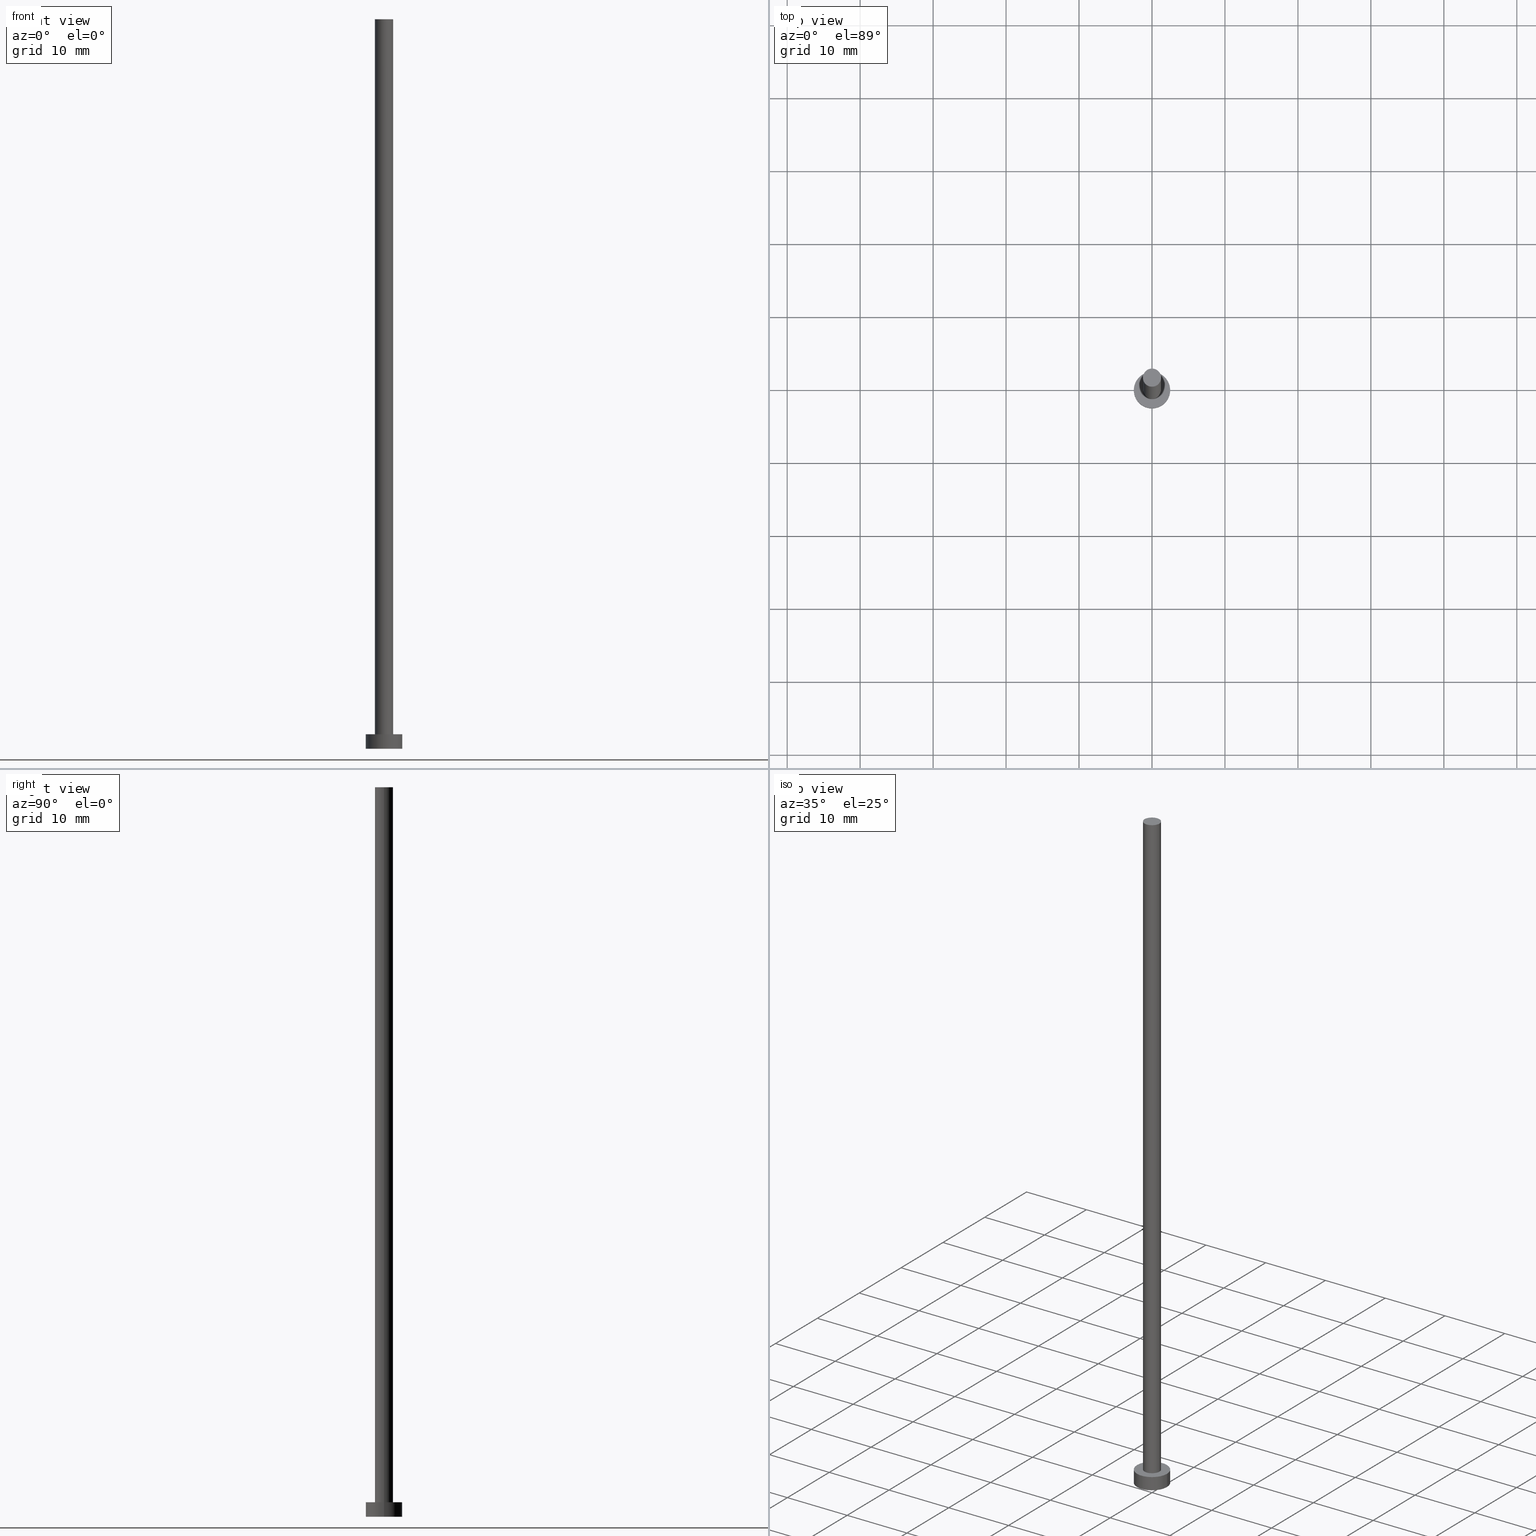
[diagram: canonical four-view strip — front | top / right | iso, engineering-drawing reading convention]
A machine part, canonical four-view strip (front | top / right | iso — engineering-drawing reading convention). The complete STEP part file that produces these views, byte-faithful:
ISO-10303-21;
HEADER;
FILE_DESCRIPTION (( 'STEP AP203' ),
    '1' );
FILE_NAME ('3bc7.STEP',
    '2023-02-13T16:41:01',
    ( '' ),
    ( '' ),
    'SwSTEP 2.0',
    'SolidWorks 2019',
    '' );
FILE_SCHEMA (( 'CONFIG_CONTROL_DESIGN' ));
ENDSEC;

DATA;
#1 = ORGANIZATION ( 'NEUR�EN�', 'NEUR�EN�', '' ) ;
#2 = DATE_AND_TIME ( #34, #132 ) ;
#3 = CARTESIAN_POINT ( 'NONE',  ( 0.000000000000000000, 0.000000000000000000, 100.0000000000000000 ) ) ;
#4 = PERSON_AND_ORGANIZATION ( #53, #1 ) ;
#5 = CARTESIAN_POINT ( 'NONE',  ( 0.000000000000000000, 0.000000000000000000, 100.0000000000000000 ) ) ;
#6 = AXIS2_PLACEMENT_3D ( 'NONE', #5, #10, #137 ) ;
#7 = ADVANCED_FACE ( 'NONE', ( #93 ), #202, .T. ) ;
#8 = ORIENTED_EDGE ( 'NONE', *, *, #186, .T. ) ;
#9 = PERSON_AND_ORGANIZATION ( #53, #1 ) ;
#10 = DIRECTION ( 'NONE',  ( 0.000000000000000000, 0.000000000000000000, 1.000000000000000000 ) ) ;
#11 = EDGE_LOOP ( 'NONE', ( #91, #114, #204, #171 ) ) ;
#12 = CLOSED_SHELL ( 'NONE', ( #88, #27, #7, #126, #124, #136, #212 ) ) ;
#13 = ORIENTED_EDGE ( 'NONE', *, *, #186, .F. ) ;
#14 = EDGE_CURVE ( 'NONE', #238, #81, #115, .T. ) ;
#15 = DIRECTION ( 'NONE',  ( 0.000000000000000000, 0.000000000000000000, 1.000000000000000000 ) ) ;
#16 = EDGE_LOOP ( 'NONE', ( #153, #89 ) ) ;
#17 = CARTESIAN_POINT ( 'NONE',  ( 0.000000000000000000, 0.000000000000000000, 0.000000000000000000 ) ) ;
#18 = CIRCLE ( 'NONE', #85, 1.250000000000000000 ) ;
#19 = FACE_OUTER_BOUND ( 'NONE', #200, .T. ) ;
#20 = PRODUCT_DEFINITION_SHAPE ( 'NONE', 'NONE',  #164 ) ;
#21 = FACE_BOUND ( 'NONE', #133, .T. ) ;
#22 = VERTEX_POINT ( 'NONE', #223 ) ;
#23 = EDGE_CURVE ( 'NONE', #22, #92, #215, .T. ) ;
#24 = LINE ( 'NONE', #90, #118 ) ;
#25 = EDGE_LOOP ( 'NONE', ( #64, #162, #8, #155 ) ) ;
#26 = COORDINATED_UNIVERSAL_TIME_OFFSET ( 1, 0, .AHEAD. ) ;
#27 = ADVANCED_FACE ( 'NONE', ( #45 ), #208, .T. ) ;
#28 = COORDINATED_UNIVERSAL_TIME_OFFSET ( 1, 0, .AHEAD. ) ;
#29 = LINE ( 'NONE', #220, #206 ) ;
#30 = DIRECTION ( 'NONE',  ( -1.000000000000000000, 0.000000000000000000, 0.000000000000000000 ) ) ;
#31 = ORIENTED_EDGE ( 'NONE', *, *, #23, .T. ) ;
#32 = EDGE_CURVE ( 'NONE', #221, #68, #104, .T. ) ;
#33 = CIRCLE ( 'NONE', #94, 2.500000000000000000 ) ;
#34 = CALENDAR_DATE ( 2023, 13, 2 ) ;
#35 = FACE_OUTER_BOUND ( 'NONE', #75, .T. ) ;
#36 = EDGE_CURVE ( 'NONE', #238, #213, #100, .T. ) ;
#37 = APPROVAL_STATUS ( 'not_yet_approved' ) ;
#38 = AXIS2_PLACEMENT_3D ( 'NONE', #211, #234, #110 ) ;
#39 = LOCAL_TIME ( 17, 41, 1.000000000000000000, #26 ) ;
#40 = PERSON_AND_ORGANIZATION ( #53, #1 ) ;
#41 = COORDINATED_UNIVERSAL_TIME_OFFSET ( 1, 0, .AHEAD. ) ;
#42 = APPROVAL ( #102, 'NEUR�EN�' ) ;
#43 = ORIENTED_EDGE ( 'NONE', *, *, #230, .T. ) ;
#44 = DATE_TIME_ROLE ( 'creation_date' ) ;
#45 = FACE_OUTER_BOUND ( 'NONE', #67, .T. ) ;
#46 = EDGE_CURVE ( 'NONE', #213, #238, #129, .T. ) ;
#47 = PERSON_AND_ORGANIZATION ( #53, #1 ) ;
#48 = EDGE_CURVE ( 'NONE', #81, #225, #33, .T. ) ;
#49 = DIRECTION ( 'NONE',  ( 1.000000000000000000, 0.000000000000000000, 0.000000000000000000 ) ) ;
#50 = APPROVAL_DATE_TIME ( #2, #42 ) ;
#51 = EDGE_CURVE ( 'NONE', #213, #225, #168, .T. ) ;
#52 = DIRECTION ( 'NONE',  ( 0.000000000000000000, 0.000000000000000000, 1.000000000000000000 ) ) ;
#53 = PERSON ( 'NEUR�EN�', 'NEUR�EN�', 'NEUR�EN�', ('NEUR�EN�'), ('NEUR�EN�'), ('NEUR�EN�') ) ;
#54 = CYLINDRICAL_SURFACE ( 'NONE', #38, 1.250000000000000000 ) ;
#55 = AXIS2_PLACEMENT_3D ( 'NONE', #60, #125, #232 ) ;
#56 = DIRECTION ( 'NONE',  ( 1.000000000000000000, 0.000000000000000000, 0.000000000000000000 ) ) ;
#57 = PRODUCT_DEFINITION_FORMATION_WITH_SPECIFIED_SOURCE ( 'LIBOVOLN�', '', #59, .NOT_KNOWN. ) ;
#58 = DATE_AND_TIME ( #135, #39 ) ;
#59 = PRODUCT ( '3bc7', '3bc7', '', ( #161 ) ) ;
#60 = CARTESIAN_POINT ( 'NONE',  ( 0.000000000000000000, 0.000000000000000000, 0.000000000000000000 ) ) ;
#61 = ORIENTED_EDGE ( 'NONE', *, *, #36, .T. ) ;
#62 = EDGE_CURVE ( 'NONE', #225, #81, #163, .T. ) ;
#63 =( NAMED_UNIT ( * ) PLANE_ANGLE_UNIT ( ) SI_UNIT ( $, .RADIAN. ) );
#64 = ORIENTED_EDGE ( 'NONE', *, *, #230, .F. ) ;
#65 = APPROVAL_ROLE ( '' ) ;
#66 = DIRECTION ( 'NONE',  ( -0.000000000000000000, -0.000000000000000000, -1.000000000000000000 ) ) ;
#67 = EDGE_LOOP ( 'NONE', ( #131, #173, #191, #205 ) ) ;
#68 = VERTEX_POINT ( 'NONE', #74 ) ;
#69 = CARTESIAN_POINT ( 'NONE',  ( 0.000000000000000000, 0.000000000000000000, 2.000000000000000000 ) ) ;
#70 = APPROVAL_ROLE ( '' ) ;
#71 = LOCAL_TIME ( 17, 41, 1.000000000000000000, #41 ) ;
#72 = DIRECTION ( 'NONE',  ( -0.000000000000000000, -0.000000000000000000, -1.000000000000000000 ) ) ;
#73 = DIRECTION ( 'NONE',  ( 1.000000000000000000, 0.000000000000000000, -0.000000000000000000 ) ) ;
#74 = CARTESIAN_POINT ( 'NONE',  ( 1.250000000000000000, 1.530808498934191571E-16, 100.0000000000000000 ) ) ;
#75 = EDGE_LOOP ( 'NONE', ( #96, #43, #31, #13 ) ) ;
#76 = DIRECTION ( 'NONE',  ( -0.000000000000000000, -0.000000000000000000, -1.000000000000000000 ) ) ;
#77 = ORIENTED_EDGE ( 'NONE', *, *, #175, .F. ) ;
#78 = CARTESIAN_POINT ( 'NONE',  ( 0.000000000000000000, 0.000000000000000000, 2.000000000000000000 ) ) ;
#79 = AXIS2_PLACEMENT_3D ( 'NONE', #169, #255, #73 ) ;
#80 = CARTESIAN_POINT ( 'NONE',  ( -2.500000000000000000, 0.000000000000000000, 2.000000000000000000 ) ) ;
#81 = VERTEX_POINT ( 'NONE', #209 ) ;
#82 = LOCAL_TIME ( 17, 41, 1.000000000000000000, #28 ) ;
#83 = PERSON_AND_ORGANIZATION_ROLE ( 'design_owner' ) ;
#84 = CARTESIAN_POINT ( 'NONE',  ( 0.000000000000000000, 0.000000000000000000, 0.000000000000000000 ) ) ;
#85 = AXIS2_PLACEMENT_3D ( 'NONE', #3, #130, #218 ) ;
#86 = APPROVAL_PERSON_ORGANIZATION ( #214, #226, #178 ) ;
#87 = PLANE ( 'NONE',  #79 ) ;
#88 = ADVANCED_FACE ( 'NONE', ( #35 ), #54, .T. ) ;
#89 = ORIENTED_EDGE ( 'NONE', *, *, #252, .T. ) ;
#90 = CARTESIAN_POINT ( 'NONE',  ( 1.250000000000000000, 1.530808498934191571E-16, 100.0000000000000000 ) ) ;
#91 = ORIENTED_EDGE ( 'NONE', *, *, #14, .F. ) ;
#92 = VERTEX_POINT ( 'NONE', #189 ) ;
#93 = FACE_OUTER_BOUND ( 'NONE', #11, .T. ) ;
#94 = AXIS2_PLACEMENT_3D ( 'NONE', #84, #52, #56 ) ;
#95 = COORDINATED_UNIVERSAL_TIME_OFFSET ( 1, 0, .AHEAD. ) ;
#96 = ORIENTED_EDGE ( 'NONE', *, *, #252, .F. ) ;
#97 = APPROVAL_STATUS ( 'not_yet_approved' ) ;
#98 = CARTESIAN_POINT ( 'NONE',  ( 2.500000000000000000, 3.061616997868383141E-16, 2.000000000000000000 ) ) ;
#99 =( NAMED_UNIT ( * ) SI_UNIT ( $, .STERADIAN. ) SOLID_ANGLE_UNIT ( ) );
#100 = CIRCLE ( 'NONE', #154, 2.500000000000000000 ) ;
#101 = CC_DESIGN_PERSON_AND_ORGANIZATION_ASSIGNMENT ( #4, #197, ( #57 ) ) ;
#102 = APPROVAL_STATUS ( 'not_yet_approved' ) ;
#103 = CARTESIAN_POINT ( 'NONE',  ( 0.000000000000000000, 0.000000000000000000, 100.0000000000000000 ) ) ;
#104 = CIRCLE ( 'NONE', #138, 1.250000000000000000 ) ;
#105 = PERSON_AND_ORGANIZATION ( #53, #1 ) ;
#106 = DIRECTION ( 'NONE',  ( 1.000000000000000000, 0.000000000000000000, 0.000000000000000000 ) ) ;
#107 = PERSON_AND_ORGANIZATION ( #53, #1 ) ;
#108 = CC_DESIGN_PERSON_AND_ORGANIZATION_ASSIGNMENT ( #40, #236, ( #57 ) ) ;
#109 = AXIS2_PLACEMENT_3D ( 'NONE', #245, #158, #182 ) ;
#110 = DIRECTION ( 'NONE',  ( -1.000000000000000000, 0.000000000000000000, 0.000000000000000000 ) ) ;
#111 = DIRECTION ( 'NONE',  ( 1.000000000000000000, 0.000000000000000000, 0.000000000000000000 ) ) ;
#112 = SHAPE_DEFINITION_REPRESENTATION ( #20, #122 ) ;
#113 = FACE_OUTER_BOUND ( 'NONE', #25, .T. ) ;
#114 = ORIENTED_EDGE ( 'NONE', *, *, #46, .F. ) ;
#115 = LINE ( 'NONE', #98, #141 ) ;
#116 = SECURITY_CLASSIFICATION_LEVEL ( 'unclassified' ) ;
#117 = CC_DESIGN_PERSON_AND_ORGANIZATION_ASSIGNMENT ( #9, #150, ( #165 ) ) ;
#118 = VECTOR ( 'NONE', #76, 1000.000000000000000 ) ;
#119 = CALENDAR_DATE ( 2023, 13, 2 ) ;
#120 = DIRECTION ( 'NONE',  ( 0.000000000000000000, 0.000000000000000000, 1.000000000000000000 ) ) ;
#121 = DIRECTION ( 'NONE',  ( 0.000000000000000000, 0.000000000000000000, 1.000000000000000000 ) ) ;
#122 = ADVANCED_BREP_SHAPE_REPRESENTATION ( '3bc7', ( #231, #227 ), #160 ) ;
#123 = EDGE_LOOP ( 'NONE', ( #250, #61 ) ) ;
#124 = ADVANCED_FACE ( 'NONE', ( #19 ), #87, .F. ) ;
#125 = DIRECTION ( 'NONE',  ( 0.000000000000000000, 0.000000000000000000, 1.000000000000000000 ) ) ;
#126 = ADVANCED_FACE ( 'NONE', ( #21, #128 ), #170, .T. ) ;
#127 = DIRECTION ( 'NONE',  ( 0.000000000000000000, 0.000000000000000000, 1.000000000000000000 ) ) ;
#128 = FACE_OUTER_BOUND ( 'NONE', #123, .T. ) ;
#129 = CIRCLE ( 'NONE', #210, 2.500000000000000000 ) ;
#130 = DIRECTION ( 'NONE',  ( 0.000000000000000000, 0.000000000000000000, 1.000000000000000000 ) ) ;
#131 = ORIENTED_EDGE ( 'NONE', *, *, #36, .F. ) ;
#132 = LOCAL_TIME ( 17, 41, 1.000000000000000000, #142 ) ;
#133 = EDGE_LOOP ( 'NONE', ( #77, #149 ) ) ;
#134 = DIRECTION ( 'NONE',  ( -0.000000000000000000, -0.000000000000000000, -1.000000000000000000 ) ) ;
#135 = CALENDAR_DATE ( 2023, 13, 2 ) ;
#136 = ADVANCED_FACE ( 'NONE', ( #113 ), #179, .T. ) ;
#137 = DIRECTION ( 'NONE',  ( 1.000000000000000000, 0.000000000000000000, -0.000000000000000000 ) ) ;
#138 = AXIS2_PLACEMENT_3D ( 'NONE', #103, #251, #106 ) ;
#139 = DATE_AND_TIME ( #195, #82 ) ;
#140 = PLANE ( 'NONE',  #6 ) ;
#141 = VECTOR ( 'NONE', #198, 1000.000000000000000 ) ;
#142 = COORDINATED_UNIVERSAL_TIME_OFFSET ( 1, 0, .AHEAD. ) ;
#143 = CC_DESIGN_APPROVAL ( #216, ( #57 ) ) ;
#144 = CC_DESIGN_APPROVAL ( #226, ( #165 ) ) ;
#145 = DIRECTION ( 'NONE',  ( -1.000000000000000000, 0.000000000000000000, 0.000000000000000000 ) ) ;
#146 = APPLICATION_CONTEXT ( 'configuration controlled 3d designs of mechanical parts and assemblies' ) ;
#147 = DIRECTION ( 'NONE',  ( 1.000000000000000000, 0.000000000000000000, 0.000000000000000000 ) ) ;
#148 = CC_DESIGN_PERSON_AND_ORGANIZATION_ASSIGNMENT ( #107, #188, ( #164 ) ) ;
#149 = ORIENTED_EDGE ( 'NONE', *, *, #23, .F. ) ;
#150 = PERSON_AND_ORGANIZATION_ROLE ( 'classification_officer' ) ;
#151 = CARTESIAN_POINT ( 'NONE',  ( 0.000000000000000000, 0.000000000000000000, 2.000000000000000000 ) ) ;
#152 = APPLICATION_CONTEXT ( 'configuration controlled 3d designs of mechanical parts and assemblies' ) ;
#153 = ORIENTED_EDGE ( 'NONE', *, *, #32, .T. ) ;
#154 = AXIS2_PLACEMENT_3D ( 'NONE', #151, #127, #147 ) ;
#155 = ORIENTED_EDGE ( 'NONE', *, *, #175, .T. ) ;
#156 =( LENGTH_UNIT ( ) NAMED_UNIT ( * ) SI_UNIT ( .MILLI., .METRE. ) );
#157 = CARTESIAN_POINT ( 'NONE',  ( -2.500000000000000000, 0.000000000000000000, 0.000000000000000000 ) ) ;
#158 = DIRECTION ( 'NONE',  ( 0.000000000000000000, 0.000000000000000000, 1.000000000000000000 ) ) ;
#159 = DIRECTION ( 'NONE',  ( -1.000000000000000000, 0.000000000000000000, 0.000000000000000000 ) ) ;
#160 =( GEOMETRIC_REPRESENTATION_CONTEXT ( 3 ) GLOBAL_UNCERTAINTY_ASSIGNED_CONTEXT ( ( #177 ) ) GLOBAL_UNIT_ASSIGNED_CONTEXT ( ( #156, #63, #99 ) ) REPRESENTATION_CONTEXT ( 'NONE', 'WORKASPACE' ) );
#161 = MECHANICAL_CONTEXT ( 'NONE', #152, 'mechanical' ) ;
#162 = ORIENTED_EDGE ( 'NONE', *, *, #32, .F. ) ;
#163 = CIRCLE ( 'NONE', #55, 2.500000000000000000 ) ;
#164 = PRODUCT_DEFINITION ( 'NEZN�M�', '', #57, #249 ) ;
#165 = SECURITY_CLASSIFICATION ( '', '', #116 ) ;
#166 = APPLICATION_PROTOCOL_DEFINITION ( 'international standard', 'config_control_design', 1994, #146 ) ;
#167 = CARTESIAN_POINT ( 'NONE',  ( 0.000000000000000000, 0.000000000000000000, 2.000000000000000000 ) ) ;
#168 = LINE ( 'NONE', #190, #248 ) ;
#169 = CARTESIAN_POINT ( 'NONE',  ( 0.000000000000000000, 0.000000000000000000, 0.000000000000000000 ) ) ;
#170 = PLANE ( 'NONE',  #185 ) ;
#171 = ORIENTED_EDGE ( 'NONE', *, *, #62, .T. ) ;
#172 = CARTESIAN_POINT ( 'NONE',  ( 2.500000000000000000, 3.061616997868383141E-16, 2.000000000000000000 ) ) ;
#173 = ORIENTED_EDGE ( 'NONE', *, *, #14, .T. ) ;
#174 = DATE_AND_TIME ( #181, #71 ) ;
#175 = EDGE_CURVE ( 'NONE', #92, #22, #233, .T. ) ;
#176 = AXIS2_PLACEMENT_3D ( 'NONE', #228, #121, #246 ) ;
#177 = UNCERTAINTY_MEASURE_WITH_UNIT (LENGTH_MEASURE( 1.000000000000000082E-05 ), #156, 'distance_accuracy_value', 'NONE');
#178 = APPROVAL_ROLE ( '' ) ;
#179 = CYLINDRICAL_SURFACE ( 'NONE', #217, 1.250000000000000000 ) ;
#180 = CARTESIAN_POINT ( 'NONE',  ( 0.000000000000000000, 0.000000000000000000, 2.000000000000000000 ) ) ;
#181 = CALENDAR_DATE ( 2023, 13, 2 ) ;
#182 = DIRECTION ( 'NONE',  ( 1.000000000000000000, 0.000000000000000000, 0.000000000000000000 ) ) ;
#183 = PRODUCT_RELATED_PRODUCT_CATEGORY ( 'detail', '', ( #59 ) ) ;
#184 = CC_DESIGN_APPROVAL ( #42, ( #164 ) ) ;
#185 = AXIS2_PLACEMENT_3D ( 'NONE', #180, #120, #199 ) ;
#186 = EDGE_CURVE ( 'NONE', #221, #92, #29, .T. ) ;
#187 = DIRECTION ( 'NONE',  ( 0.000000000000000000, 0.000000000000000000, 1.000000000000000000 ) ) ;
#188 = PERSON_AND_ORGANIZATION_ROLE ( 'creator' ) ;
#189 = CARTESIAN_POINT ( 'NONE',  ( -1.250000000000000000, 0.000000000000000000, 2.000000000000000000 ) ) ;
#190 = CARTESIAN_POINT ( 'NONE',  ( -2.500000000000000000, 0.000000000000000000, 2.000000000000000000 ) ) ;
#191 = ORIENTED_EDGE ( 'NONE', *, *, #48, .T. ) ;
#192 = DATE_TIME_ROLE ( 'classification_date' ) ;
#193 = CARTESIAN_POINT ( 'NONE',  ( -1.250000000000000000, 0.000000000000000000, 100.0000000000000000 ) ) ;
#194 = LOCAL_TIME ( 17, 41, 1.000000000000000000, #95 ) ;
#195 = CALENDAR_DATE ( 2023, 13, 2 ) ;
#196 = CC_DESIGN_DATE_AND_TIME_ASSIGNMENT ( #58, #192, ( #165 ) ) ;
#197 = PERSON_AND_ORGANIZATION_ROLE ( 'design_supplier' ) ;
#198 = DIRECTION ( 'NONE',  ( -0.000000000000000000, -0.000000000000000000, -1.000000000000000000 ) ) ;
#199 = DIRECTION ( 'NONE',  ( 1.000000000000000000, 0.000000000000000000, -0.000000000000000000 ) ) ;
#200 = EDGE_LOOP ( 'NONE', ( #203, #242 ) ) ;
#201 = PERSON_AND_ORGANIZATION ( #53, #1 ) ;
#202 = CYLINDRICAL_SURFACE ( 'NONE', #224, 2.500000000000000000 ) ;
#203 = ORIENTED_EDGE ( 'NONE', *, *, #62, .F. ) ;
#204 = ORIENTED_EDGE ( 'NONE', *, *, #51, .T. ) ;
#205 = ORIENTED_EDGE ( 'NONE', *, *, #51, .F. ) ;
#206 = VECTOR ( 'NONE', #244, 1000.000000000000000 ) ;
#207 = DIRECTION ( 'NONE',  ( -0.000000000000000000, -0.000000000000000000, -1.000000000000000000 ) ) ;
#208 = CYLINDRICAL_SURFACE ( 'NONE', #253, 2.500000000000000000 ) ;
#209 = CARTESIAN_POINT ( 'NONE',  ( 2.500000000000000000, 3.061616997868383141E-16, 0.000000000000000000 ) ) ;
#210 = AXIS2_PLACEMENT_3D ( 'NONE', #167, #187, #111 ) ;
#211 = CARTESIAN_POINT ( 'NONE',  ( 0.000000000000000000, 0.000000000000000000, 100.0000000000000000 ) ) ;
#212 = ADVANCED_FACE ( 'NONE', ( #237 ), #140, .T. ) ;
#213 = VERTEX_POINT ( 'NONE', #80 ) ;
#214 = PERSON_AND_ORGANIZATION ( #53, #1 ) ;
#215 = CIRCLE ( 'NONE', #176, 1.250000000000000000 ) ;
#216 = APPROVAL ( #97, 'NEUR�EN�' ) ;
#217 = AXIS2_PLACEMENT_3D ( 'NONE', #240, #66, #30 ) ;
#218 = DIRECTION ( 'NONE',  ( 1.000000000000000000, 0.000000000000000000, 0.000000000000000000 ) ) ;
#219 = DATE_AND_TIME ( #119, #194 ) ;
#220 = CARTESIAN_POINT ( 'NONE',  ( -1.250000000000000000, 0.000000000000000000, 100.0000000000000000 ) ) ;
#221 = VERTEX_POINT ( 'NONE', #193 ) ;
#222 = APPROVAL_DATE_TIME ( #139, #226 ) ;
#223 = CARTESIAN_POINT ( 'NONE',  ( 1.250000000000000000, 1.530808498934191571E-16, 2.000000000000000000 ) ) ;
#224 = AXIS2_PLACEMENT_3D ( 'NONE', #78, #134, #159 ) ;
#225 = VERTEX_POINT ( 'NONE', #157 ) ;
#226 = APPROVAL ( #37, 'NEUR�EN�' ) ;
#227 = AXIS2_PLACEMENT_3D ( 'NONE', #17, #15, #49 ) ;
#228 = CARTESIAN_POINT ( 'NONE',  ( 0.000000000000000000, 0.000000000000000000, 2.000000000000000000 ) ) ;
#229 = APPROVAL_PERSON_ORGANIZATION ( #201, #216, #65 ) ;
#230 = EDGE_CURVE ( 'NONE', #68, #22, #24, .T. ) ;
#231 = MANIFOLD_SOLID_BREP ( 'P�idat vysunut�m3', #12 ) ;
#232 = DIRECTION ( 'NONE',  ( 1.000000000000000000, 0.000000000000000000, 0.000000000000000000 ) ) ;
#233 = CIRCLE ( 'NONE', #109, 1.250000000000000000 ) ;
#234 = DIRECTION ( 'NONE',  ( -0.000000000000000000, -0.000000000000000000, -1.000000000000000000 ) ) ;
#235 = CC_DESIGN_PERSON_AND_ORGANIZATION_ASSIGNMENT ( #47, #83, ( #59 ) ) ;
#236 = PERSON_AND_ORGANIZATION_ROLE ( 'creator' ) ;
#237 = FACE_OUTER_BOUND ( 'NONE', #16, .T. ) ;
#238 = VERTEX_POINT ( 'NONE', #172 ) ;
#239 = APPROVAL_DATE_TIME ( #174, #216 ) ;
#240 = CARTESIAN_POINT ( 'NONE',  ( 0.000000000000000000, 0.000000000000000000, 100.0000000000000000 ) ) ;
#241 = CC_DESIGN_SECURITY_CLASSIFICATION ( #165, ( #57 ) ) ;
#242 = ORIENTED_EDGE ( 'NONE', *, *, #48, .F. ) ;
#243 = CC_DESIGN_DATE_AND_TIME_ASSIGNMENT ( #219, #44, ( #164 ) ) ;
#244 = DIRECTION ( 'NONE',  ( -0.000000000000000000, -0.000000000000000000, -1.000000000000000000 ) ) ;
#245 = CARTESIAN_POINT ( 'NONE',  ( 0.000000000000000000, 0.000000000000000000, 2.000000000000000000 ) ) ;
#246 = DIRECTION ( 'NONE',  ( 1.000000000000000000, 0.000000000000000000, 0.000000000000000000 ) ) ;
#247 = APPLICATION_PROTOCOL_DEFINITION ( 'international standard', 'config_control_design', 1994, #152 ) ;
#248 = VECTOR ( 'NONE', #72, 1000.000000000000000 ) ;
#249 = DESIGN_CONTEXT ( 'detailed design', #146, 'design' ) ;
#250 = ORIENTED_EDGE ( 'NONE', *, *, #46, .T. ) ;
#251 = DIRECTION ( 'NONE',  ( 0.000000000000000000, 0.000000000000000000, 1.000000000000000000 ) ) ;
#252 = EDGE_CURVE ( 'NONE', #68, #221, #18, .T. ) ;
#253 = AXIS2_PLACEMENT_3D ( 'NONE', #69, #207, #145 ) ;
#254 = APPROVAL_PERSON_ORGANIZATION ( #105, #42, #70 ) ;
#255 = DIRECTION ( 'NONE',  ( 0.000000000000000000, 0.000000000000000000, 1.000000000000000000 ) ) ;
ENDSEC;
END-ISO-10303-21;
